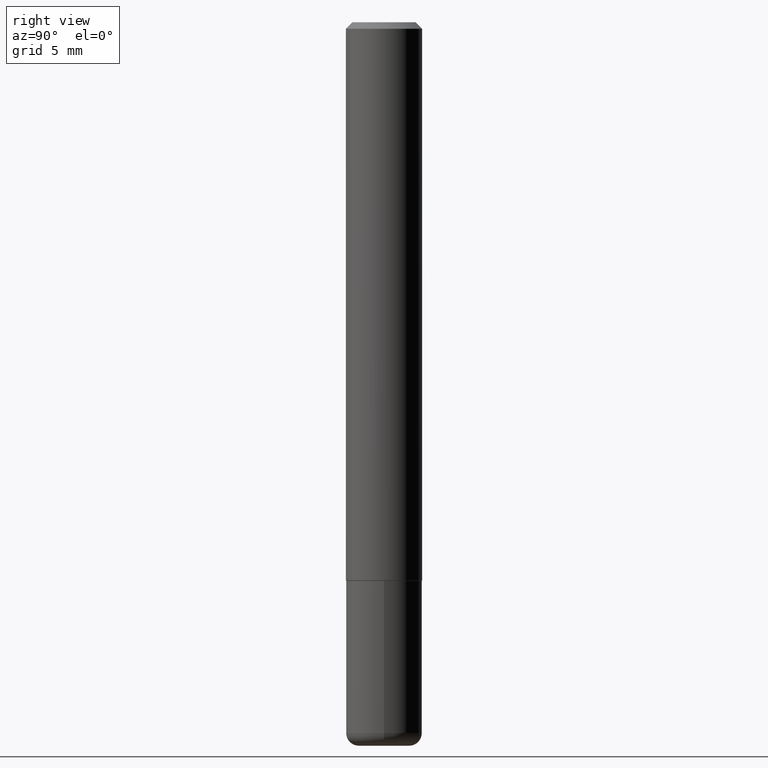
[diagram: clean part render]
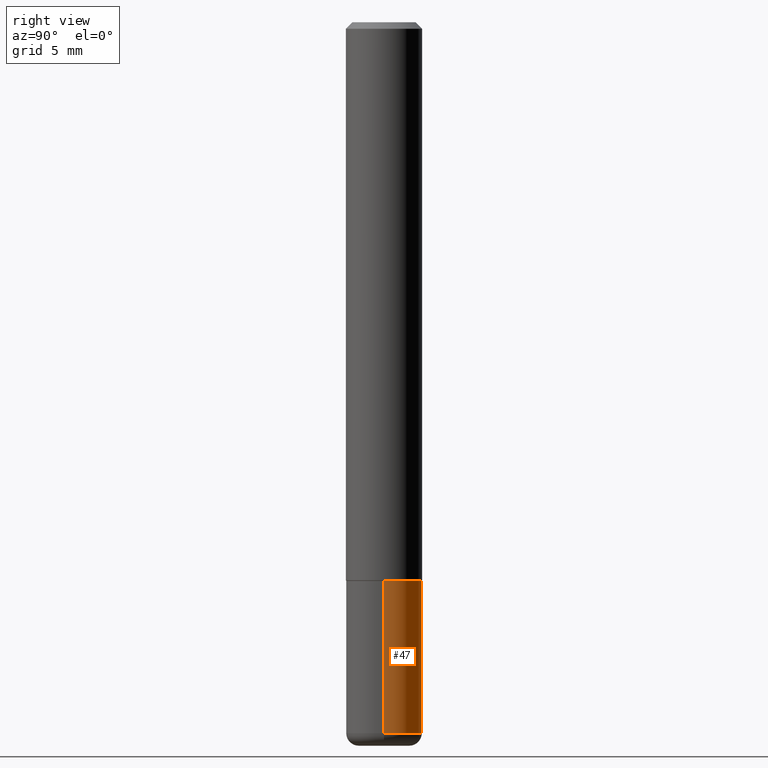
[diagram: same view with one face highlighted and labeled with its STEP entity id]
A machine part, right view. The second image highlights one B-rep face of the part: STEP entity #47.
In plain terms, the highlighted cylindrical surface (partial cylindrical patch) has radius 2.9997 mm, axis along (-0, 0, 1).
Its self-contained STEP definition (entity closure, byte-faithful):
#12 = CARTESIAN_POINT ( 'NONE',  ( -0.1181000000000000105, 8.391509709326783943E-16, -5.809262341591044484E-30 ) ) ;
#13 = CYLINDRICAL_SURFACE ( 'NONE', #270, 0.1181000000000000105 ) ;
#29 = AXIS2_PLACEMENT_3D ( 'NONE', #308, #139, #305 ) ;
#42 = VERTEX_POINT ( 'NONE', #145 ) ;
#47 = ADVANCED_FACE ( 'NONE', ( #149 ), #13, .T. ) ;
#61 = CARTESIAN_POINT ( 'NONE',  ( -0.1180999999999998995, -6.858517936814806506E-15, -2.204700000000000326 ) ) ;
#94 = ORIENTED_EDGE ( 'NONE', *, *, #169, .T. ) ;
#113 = LINE ( 'NONE', #365, #333 ) ;
#118 = DIRECTION ( 'NONE',  ( -2.445468806185136597E-29, 3.491481338843145583E-15, 1.000000000000000000 ) ) ;
#139 = DIRECTION ( 'NONE',  ( -2.445468806185136597E-29, 3.491481338843145583E-15, 1.000000000000000000 ) ) ;
#144 = EDGE_CURVE ( 'NONE', #42, #319, #146, .T. ) ;
#145 = CARTESIAN_POINT ( 'NONE',  ( 0.1181000000000000383, -6.872981015512729341E-15, -1.732299999999999951 ) ) ;
#146 = CIRCLE ( 'NONE', #227, 0.1181000000000000383 ) ;
#149 = FACE_OUTER_BOUND ( 'NONE', #363, .T. ) ;
#154 = CIRCLE ( 'NONE', #29, 0.1180999999999999966 ) ;
#159 = EDGE_CURVE ( 'NONE', #249, #42, #113, .T. ) ;
#164 = EDGE_CURVE ( 'NONE', #249, #378, #154, .T. ) ;
#169 = EDGE_CURVE ( 'NONE', #378, #319, #271, .T. ) ;
#172 = DIRECTION ( 'NONE',  ( -2.445468806185136597E-29, 3.491481338843145583E-15, 1.000000000000000000 ) ) ;
#176 = CARTESIAN_POINT ( 'NONE',  ( 0.000000000000000000, 0.000000000000000000, 0.000000000000000000 ) ) ;
#210 = CARTESIAN_POINT ( 'NONE',  ( 4.236285612954512392E-29, -6.048293123277981078E-15, -1.732299999999999951 ) ) ;
#222 = CARTESIAN_POINT ( 'NONE',  ( -0.1181000000000000522, -6.033830044580054299E-15, -1.732299999999999951 ) ) ;
#227 = AXIS2_PLACEMENT_3D ( 'NONE', #210, #172, #303 ) ;
#236 = DIRECTION ( 'NONE',  ( 1.000000000000000000, -6.982962677686267499E-15, 4.876176775795936353E-29 ) ) ;
#249 = VERTEX_POINT ( 'NONE', #312 ) ;
#250 = VECTOR ( 'NONE', #393, 39.37007874015748143 ) ;
#270 = AXIS2_PLACEMENT_3D ( 'NONE', #176, #118, #236 ) ;
#271 = LINE ( 'NONE', #12, #250 ) ;
#303 = DIRECTION ( 'NONE',  ( 1.000000000000000000, -6.982962677686262766E-15, 0.000000000000000000 ) ) ;
#305 = DIRECTION ( 'NONE',  ( 1.000000000000000000, -6.982962677686265133E-15, 0.000000000000000000 ) ) ;
#308 = CARTESIAN_POINT ( 'NONE',  ( 5.391525076996371277E-29, -7.697668907747483125E-15, -2.204700000000000326 ) ) ;
#312 = CARTESIAN_POINT ( 'NONE',  ( 0.1180999999999998995, -8.522356799982231388E-15, -2.204700000000000326 ) ) ;
#319 = VERTEX_POINT ( 'NONE', #222 ) ;
#333 = VECTOR ( 'NONE', #334, 39.37007874015748143 ) ;
#334 = DIRECTION ( 'NONE',  ( -2.445468806185136877E-29, 3.491481338843145188E-15, 1.000000000000000000 ) ) ;
#352 = ORIENTED_EDGE ( 'NONE', *, *, #144, .F. ) ;
#363 = EDGE_LOOP ( 'NONE', ( #394, #94, #352, #410 ) ) ;
#365 = CARTESIAN_POINT ( 'NONE',  ( 0.1181000000000000105, -8.246878922347482626E-16, 5.758764772215001141E-30 ) ) ;
#378 = VERTEX_POINT ( 'NONE', #61 ) ;
#393 = DIRECTION ( 'NONE',  ( -2.445468806185136877E-29, 3.491481338843145188E-15, 1.000000000000000000 ) ) ;
#394 = ORIENTED_EDGE ( 'NONE', *, *, #164, .T. ) ;
#410 = ORIENTED_EDGE ( 'NONE', *, *, #159, .F. ) ;